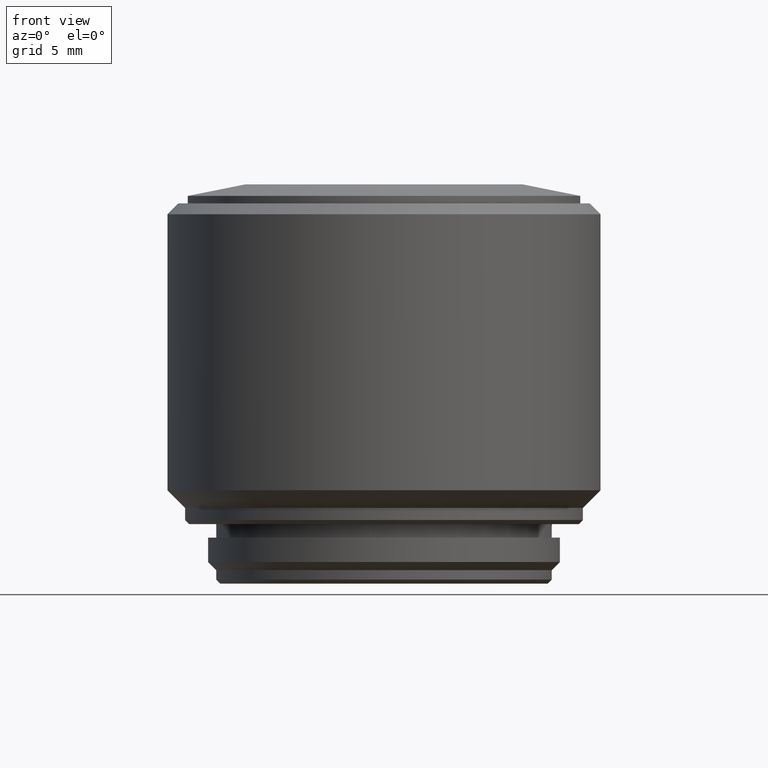
[diagram: clean part render]
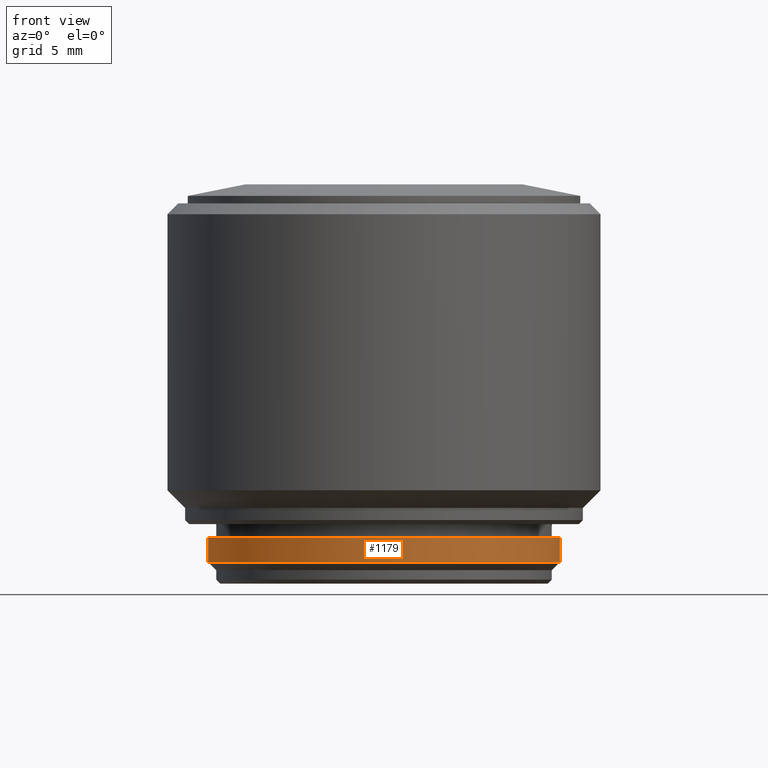
[diagram: same view with one face highlighted and labeled with its STEP entity id]
A machine part, front view. The second image highlights one B-rep face of the part: STEP entity #1179.
In plain terms, the highlighted cylindrical surface (partial cylindrical patch) has radius 13 mm, axis along (0, 0, -1).
Its self-contained STEP definition (entity closure, byte-faithful):
#64 = LINE ( 'NONE', #2856, #1329 ) ;
#1134 = EDGE_CURVE ( 'NONE', #11751, #15518, #2675, .T. ) ;
#1179 = ADVANCED_FACE ( 'NONE', ( #9791 ), #16565, .T. ) ;
#1329 = VECTOR ( 'NONE', #21521, 1000.000000000000000 ) ;
#1358 = CARTESIAN_POINT ( 'NONE',  ( 0.000000000000000000, 0.000000000000000000, 4.400000000000000355 ) ) ;
#2145 = ORIENTED_EDGE ( 'NONE', *, *, #1134, .T. ) ;
#2502 = EDGE_CURVE ( 'NONE', #11751, #11290, #2592, .T. ) ;
#2592 = CIRCLE ( 'NONE', #17836, 13.00000000000000000 ) ;
#2675 = LINE ( 'NONE', #4456, #6376 ) ;
#2856 = CARTESIAN_POINT ( 'NONE',  ( 13.00000000000000000, 1.592040838891559095E-15, 4.400000000000000355 ) ) ;
#4456 = CARTESIAN_POINT ( 'NONE',  ( -13.00000000000000000, 0.000000000000000000, 4.400000000000000355 ) ) ;
#5935 = ORIENTED_EDGE ( 'NONE', *, *, #7812, .F. ) ;
#6095 = ORIENTED_EDGE ( 'NONE', *, *, #20572, .T. ) ;
#6376 = VECTOR ( 'NONE', #9450, 1000.000000000000000 ) ;
#6453 = DIRECTION ( 'NONE',  ( -1.000000000000000000, 0.000000000000000000, 0.000000000000000000 ) ) ;
#6917 = CARTESIAN_POINT ( 'NONE',  ( 0.000000000000000000, 0.000000000000000000, 1.600000000000000089 ) ) ;
#7707 = EDGE_LOOP ( 'NONE', ( #5935, #20513, #2145, #6095 ) ) ;
#7812 = EDGE_CURVE ( 'NONE', #11290, #14258, #64, .T. ) ;
#7843 = CARTESIAN_POINT ( 'NONE',  ( 13.00000000000000000, 0.000000000000000000, 1.600000000000000089 ) ) ;
#9450 = DIRECTION ( 'NONE',  ( 0.000000000000000000, 0.000000000000000000, -1.000000000000000000 ) ) ;
#9791 = FACE_OUTER_BOUND ( 'NONE', #7707, .T. ) ;
#11290 = VERTEX_POINT ( 'NONE', #15350 ) ;
#11751 = VERTEX_POINT ( 'NONE', #13421 ) ;
#12020 = CARTESIAN_POINT ( 'NONE',  ( 0.000000000000000000, 0.000000000000000000, 3.399999999999999911 ) ) ;
#12023 = DIRECTION ( 'NONE',  ( 0.000000000000000000, 0.000000000000000000, 1.000000000000000000 ) ) ;
#12338 = CARTESIAN_POINT ( 'NONE',  ( -13.00000000000000000, 1.592040838891559095E-15, 1.600000000000000089 ) ) ;
#13421 = CARTESIAN_POINT ( 'NONE',  ( -13.00000000000000000, 0.000000000000000000, 3.399999999999999911 ) ) ;
#13487 = AXIS2_PLACEMENT_3D ( 'NONE', #1358, #20119, #6453 ) ;
#13845 = CIRCLE ( 'NONE', #21678, 13.00000000000000000 ) ;
#14258 = VERTEX_POINT ( 'NONE', #7843 ) ;
#15350 = CARTESIAN_POINT ( 'NONE',  ( 13.00000000000000000, 1.592040838891559095E-15, 3.399999999999999911 ) ) ;
#15518 = VERTEX_POINT ( 'NONE', #12338 ) ;
#16565 = CYLINDRICAL_SURFACE ( 'NONE', #13487, 13.00000000000000000 ) ;
#17836 = AXIS2_PLACEMENT_3D ( 'NONE', #12020, #21924, #20046 ) ;
#20046 = DIRECTION ( 'NONE',  ( -1.000000000000000000, 0.000000000000000000, 0.000000000000000000 ) ) ;
#20119 = DIRECTION ( 'NONE',  ( 0.000000000000000000, 0.000000000000000000, -1.000000000000000000 ) ) ;
#20513 = ORIENTED_EDGE ( 'NONE', *, *, #2502, .F. ) ;
#20572 = EDGE_CURVE ( 'NONE', #15518, #14258, #13845, .T. ) ;
#20895 = DIRECTION ( 'NONE',  ( -1.000000000000000000, 0.000000000000000000, 0.000000000000000000 ) ) ;
#21521 = DIRECTION ( 'NONE',  ( 0.000000000000000000, 0.000000000000000000, -1.000000000000000000 ) ) ;
#21678 = AXIS2_PLACEMENT_3D ( 'NONE', #6917, #12023, #20895 ) ;
#21924 = DIRECTION ( 'NONE',  ( 0.000000000000000000, 0.000000000000000000, 1.000000000000000000 ) ) ;